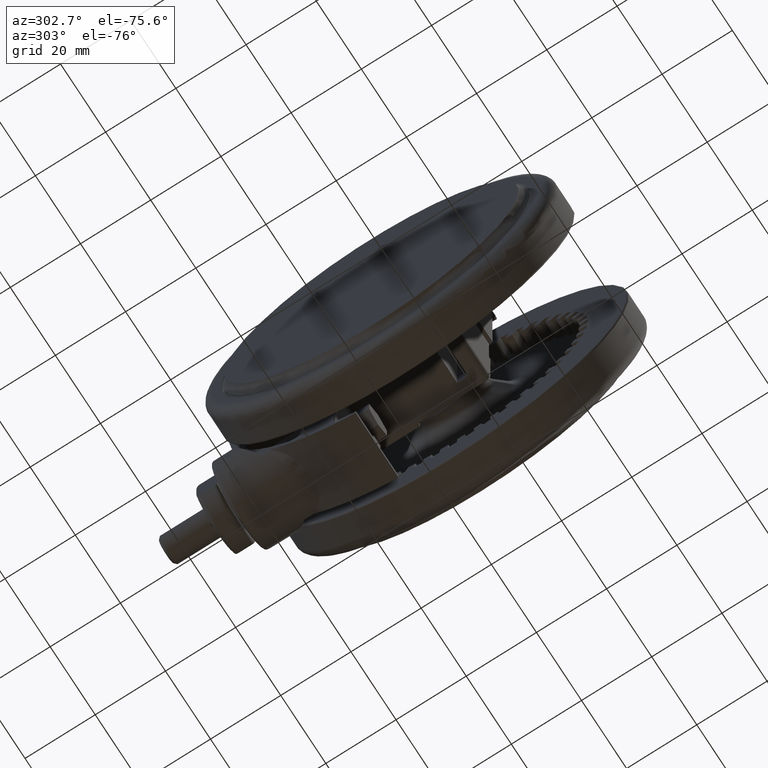
[diagram: clean part render]
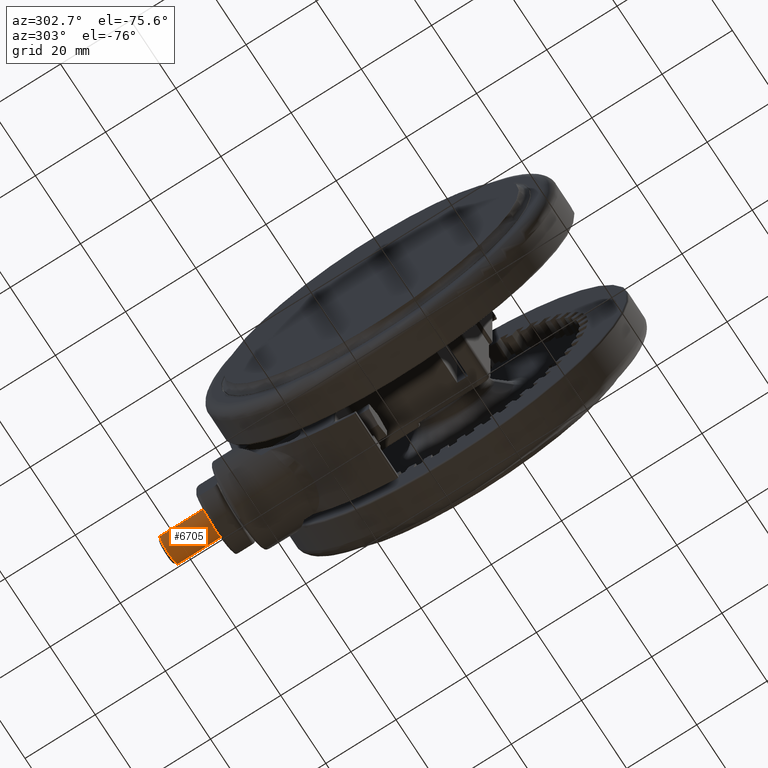
[diagram: same view with one face highlighted and labeled with its STEP entity id]
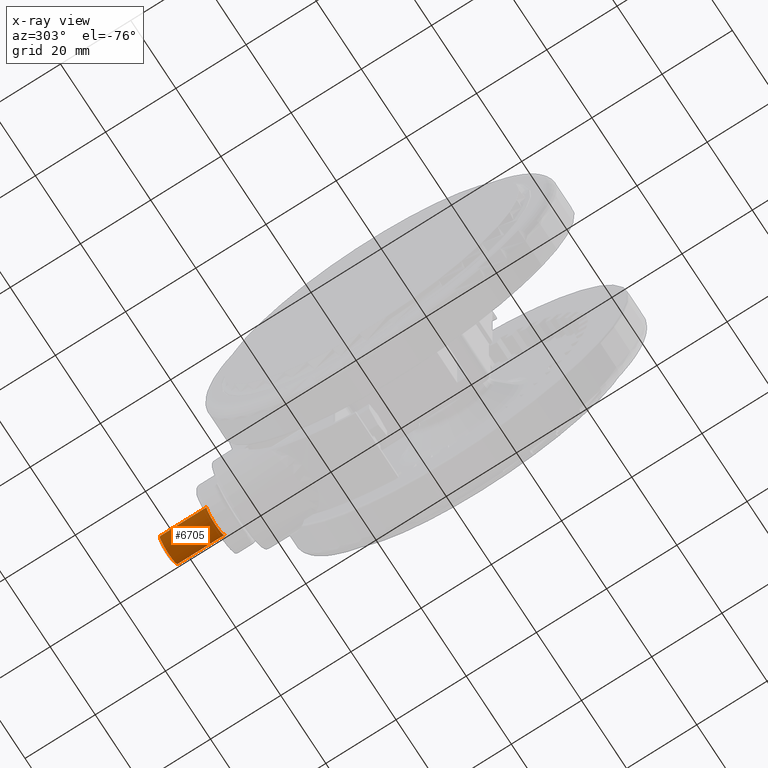
[diagram: x-ray of the same camera — body ghosted, the highlighted face saturated]
A machine part, auxiliary view. The second image highlights one B-rep face of the part: STEP entity #6705.
The next image is the same camera in x-ray: the body ghosted, the highlighted face saturated — about 0% of this face is hidden behind the body in this view.
In plain terms, the highlighted cylindrical surface (edge-blend (fillet) strip) has radius 4 mm, axis along (0, -1, -0).
Its self-contained STEP definition (entity closure, byte-faithful):
#1942 = EDGE_CURVE ( 'NONE', #47383, #31634, #31904, .T. ) ;
#3593 = VECTOR ( 'NONE', #34211, 1000.000000000000000 ) ;
#4580 = CARTESIAN_POINT ( 'NONE',  ( -23.99999999999998900, -73.31999999999999300, -20.29999999999995800 ) ) ;
#5810 = CARTESIAN_POINT ( 'NONE',  ( -23.99999999999998900, -73.31999999999999300, -28.29999999999993700 ) ) ;
#6705 = ADVANCED_FACE ( 'NONE', ( #34701 ), #14549, .T. ) ;
#7008 = AXIS2_PLACEMENT_3D ( 'NONE', #21036, #47399, #24859 ) ;
#7102 = ORIENTED_EDGE ( 'NONE', *, *, #1942, .T. ) ;
#7742 = CARTESIAN_POINT ( 'NONE',  ( -23.99999999999998900, -74.00000000000000000, -20.29999999999994700 ) ) ;
#11945 = DIRECTION ( 'NONE',  ( -2.360897160001558300E-016, 1.000000000000000000, -6.688773330916236600E-017 ) ) ;
#12587 = CARTESIAN_POINT ( 'NONE',  ( -23.99999999999999300, -59.99999999999999300, -24.29999999999994700 ) ) ;
#14549 = CYLINDRICAL_SURFACE ( 'NONE', #34493, 4.000000000000000000 ) ;
#15567 = EDGE_CURVE ( 'NONE', #19697, #23347, #25255, .T. ) ;
#16382 = DIRECTION ( 'NONE',  ( 0.0000000000000000000, 0.0000000000000000000, -1.000000000000000000 ) ) ;
#17634 = LINE ( 'NONE', #30840, #24173 ) ;
#19178 = EDGE_LOOP ( 'NONE', ( #24451, #34338, #22963, #7102 ) ) ;
#19697 = VERTEX_POINT ( 'NONE', #5810 ) ;
#21036 = CARTESIAN_POINT ( 'NONE',  ( -23.99999999999998900, -73.31999999999999300, -24.29999999999994700 ) ) ;
#21507 = CARTESIAN_POINT ( 'NONE',  ( -23.99999999999998900, -74.00000000000000000, -24.29999999999994700 ) ) ;
#22963 = ORIENTED_EDGE ( 'NONE', *, *, #29412, .T. ) ;
#23347 = VERTEX_POINT ( 'NONE', #4580 ) ;
#23808 = EDGE_CURVE ( 'NONE', #19697, #31634, #17634, .T. ) ;
#24173 = VECTOR ( 'NONE', #11945, 1000.000000000000000 ) ;
#24451 = ORIENTED_EDGE ( 'NONE', *, *, #23808, .F. ) ;
#24859 = DIRECTION ( 'NONE',  ( 0.0000000000000000000, 0.0000000000000000000, -1.000000000000000000 ) ) ;
#25255 = CIRCLE ( 'NONE', #7008, 4.000000000000000000 ) ;
#25506 = DIRECTION ( 'NONE',  ( 0.0000000000000000000, 0.0000000000000000000, 1.000000000000000000 ) ) ;
#29412 = EDGE_CURVE ( 'NONE', #23347, #47383, #43722, .T. ) ;
#30840 = CARTESIAN_POINT ( 'NONE',  ( -23.99999999999998900, -74.00000000000000000, -28.29999999999994700 ) ) ;
#31634 = VERTEX_POINT ( 'NONE', #34287 ) ;
#31904 = CIRCLE ( 'NONE', #39030, 4.000000000000000000 ) ;
#34211 = DIRECTION ( 'NONE',  ( -2.360897160001558300E-016, 1.000000000000000000, -6.688773330916236600E-017 ) ) ;
#34287 = CARTESIAN_POINT ( 'NONE',  ( -23.99999999999999300, -59.99999999999999300, -28.29999999999994700 ) ) ;
#34338 = ORIENTED_EDGE ( 'NONE', *, *, #15567, .T. ) ;
#34493 = AXIS2_PLACEMENT_3D ( 'NONE', #21507, #44231, #25506 ) ;
#34701 = FACE_OUTER_BOUND ( 'NONE', #19178, .T. ) ;
#39030 = AXIS2_PLACEMENT_3D ( 'NONE', #12587, #39047, #16382 ) ;
#39047 = DIRECTION ( 'NONE',  ( 2.360897160001558300E-016, -1.000000000000000000, 6.688773330916236600E-017 ) ) ;
#39954 = CARTESIAN_POINT ( 'NONE',  ( -23.99999999999999300, -59.99999999999999300, -20.29999999999994700 ) ) ;
#43722 = LINE ( 'NONE', #7742, #3593 ) ;
#44231 = DIRECTION ( 'NONE',  ( -2.360897160001558300E-016, 1.000000000000000000, -6.688773330916236600E-017 ) ) ;
#47383 = VERTEX_POINT ( 'NONE', #39954 ) ;
#47399 = DIRECTION ( 'NONE',  ( -2.360897160001558300E-016, 1.000000000000000000, -6.688773330916236600E-017 ) ) ;